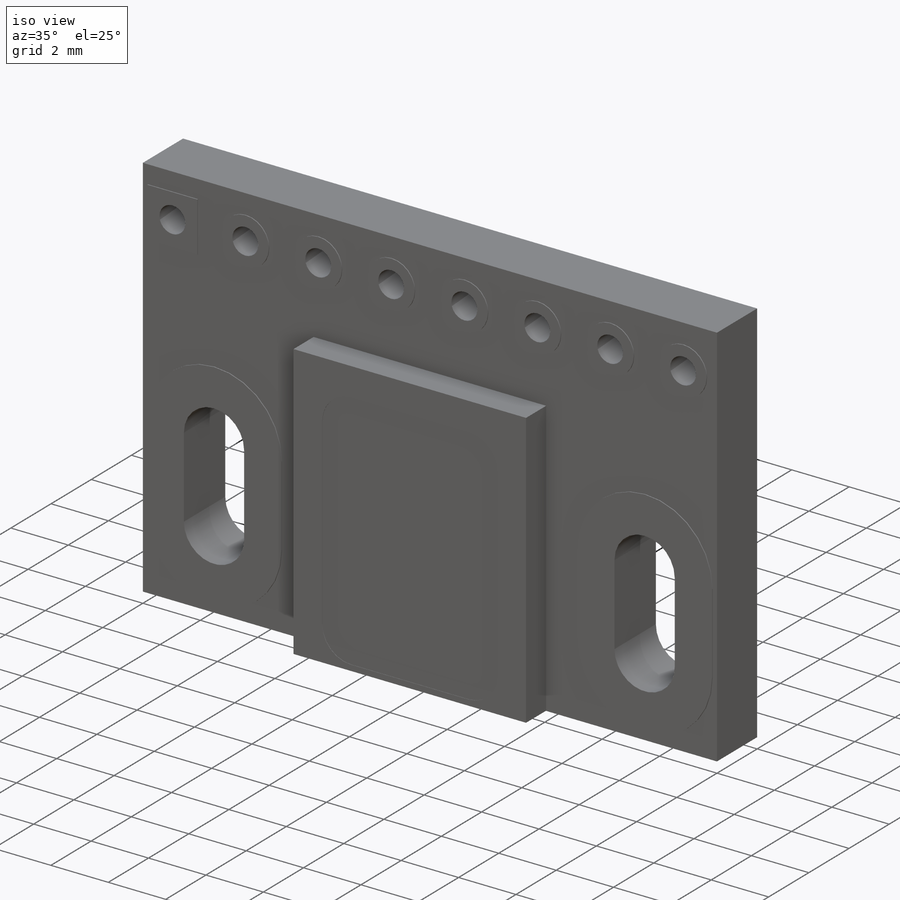
[diagram: iso view]
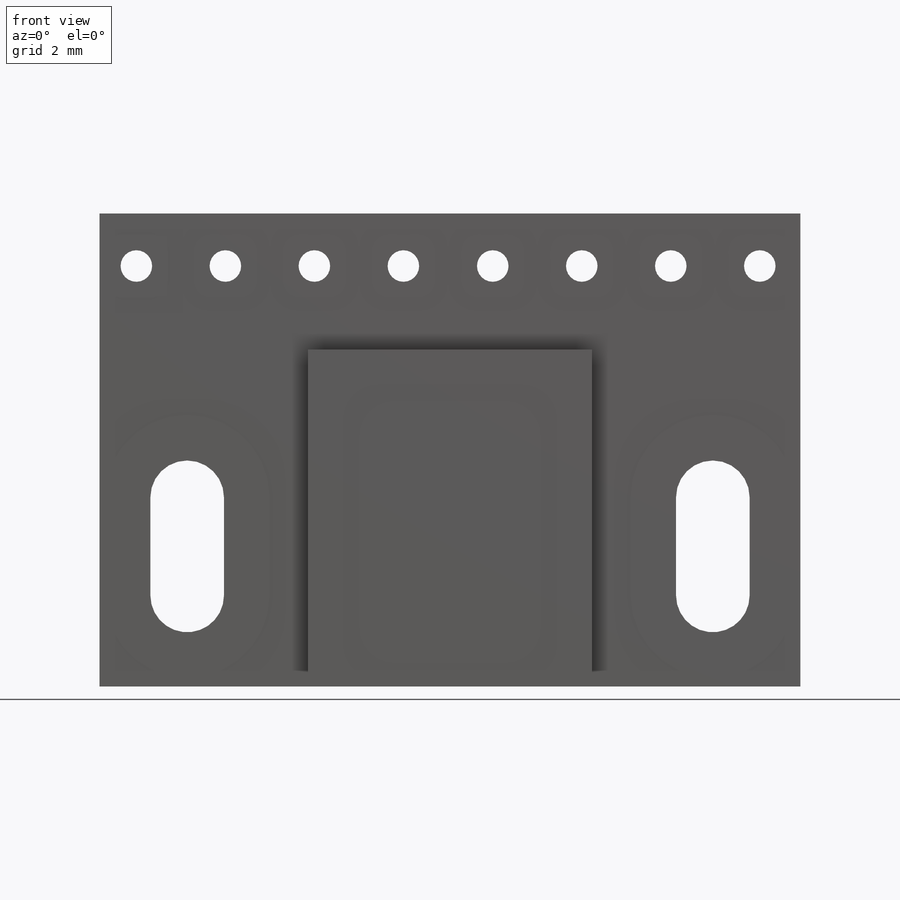
[diagram: front view]
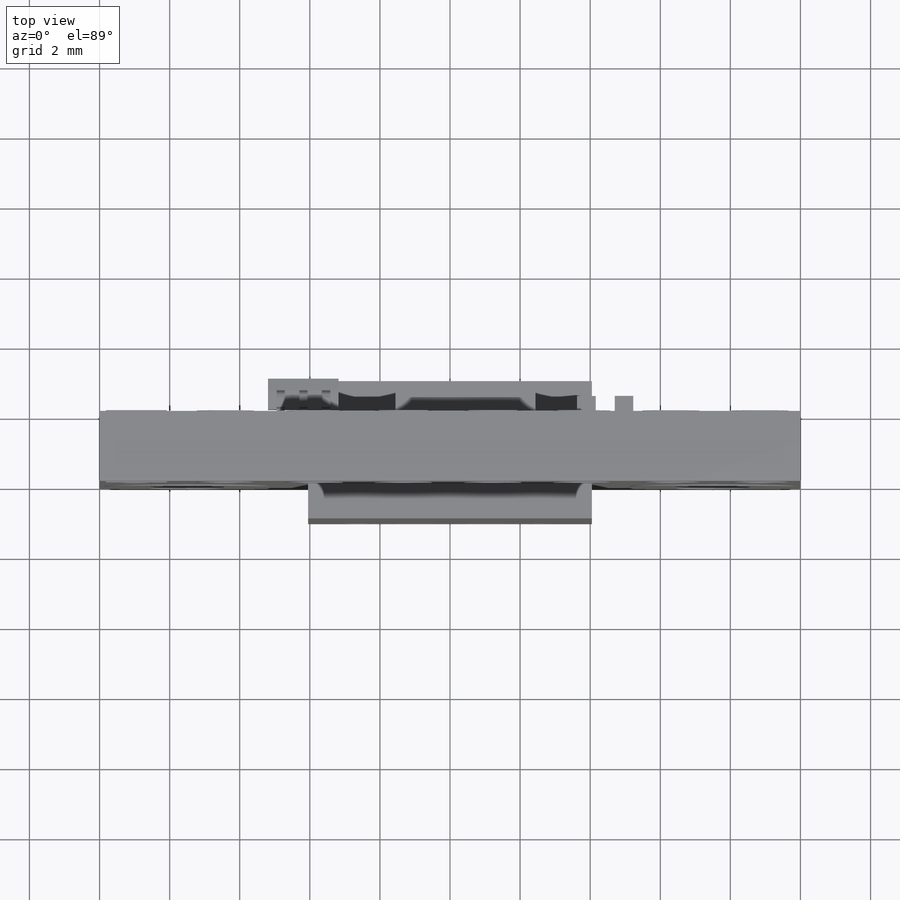
[diagram: top view]
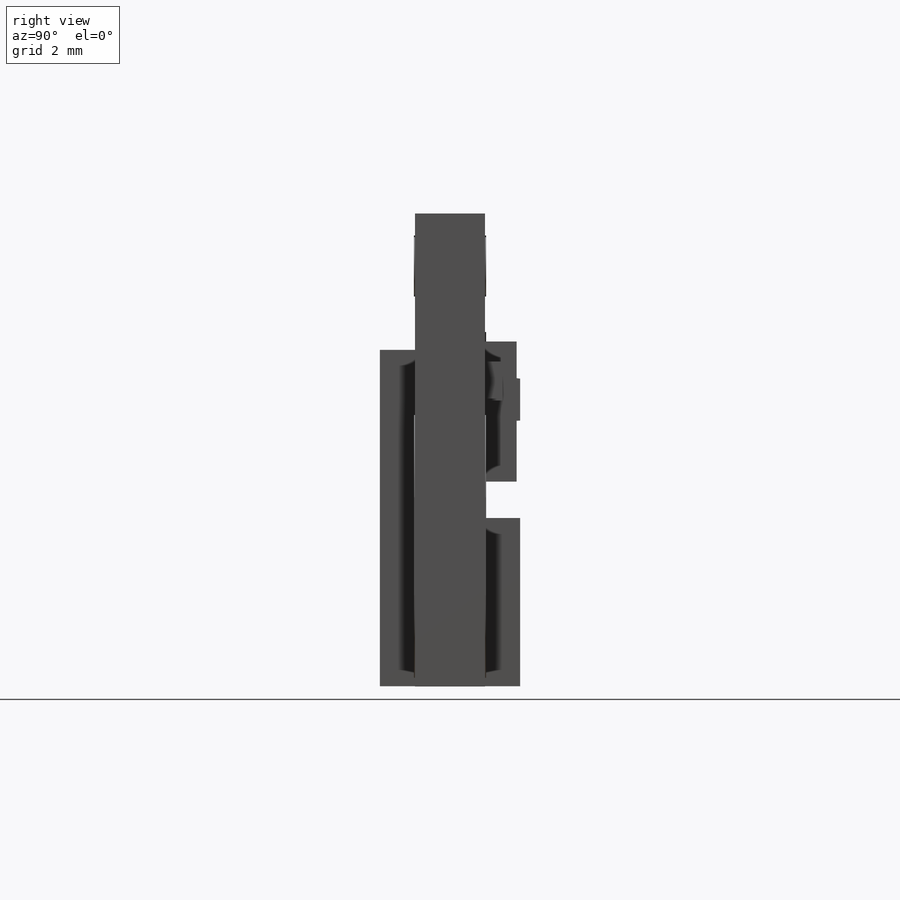
[diagram: right view]
SOLIDWORKS PART (.sldprt)
format: sldprt  version: not decoded by parser v0  size: 701,952 bytes
history: native  units: mm
features: sketch x12, extrude x8, cut_extrude x4, material x1 (+12 scaffold rows collapsed)
feature tree (37):
  scaffold x12  (default folders/planes/origin — collapsed)
  material  "Material <not specified>"
  sketch  "Sketch1"  dims[c1.D1=~13.500001mm c1.D2=20.0mm c2.D1=2.1mm c2.D2=2.1mm]
  extrude  "Boss-Extrude1"  Depth=2mm
  sketch  "Sketch2"  dims[D1=0.0mm D2=0.0mm D3=1.3mm]
  extrude  "Boss-Extrude2"  Depth=0.03mm
  sketch  "Sketch3"  dims[c1.D1=9.6mm c1.D2=8.0mm c2.D1=1.1mm c2.D2=1.1mm c2.D3=9.6mm]
  extrude  "Boss-Extrude3"  Depth=1mm
  sketch  "Sketch4"  dims[D1=4.0mm D2=4.0mm]
  extrude  "Boss-Extrude4"  Depth=0.9mm
  sketch  "Sketch5"  dims[D1=4.8mm D2=8.1mm]
  extrude  "Boss-Extrude5"  Depth=1mm
  sketch  "Sketch6"  dims[c1.D5=1.0mm c1.D1=~3.441726mm c1.D2=~6.112916mm c2.D1=1.0mm c2.D2=1.0mm c2.D3=1.0mm c2.D4=0.2mm]
  cut_extrude  "Cut-Extrude1"  Depth=0.01mm
  sketch  "Sketch7"  dims[c1.D5=1.0mm c1.D1=~8.621061mm c1.D2=~5.960556mm c2.D1=1.0mm c2.D2=1.0mm c2.D3=1.0mm c2.D4=0.2mm]
  cut_extrude  "Cut-Extrude2"  Depth=0.01mm
  sketch  "Sketch8"  dims[c1.D1=~0.989635mm c1.D2=~0.999632mm c2.D1=~0.989635mm c2.D2=~1.049613mm]
  extrude  "Boss-Extrude6"  [1 undecoded]
  sketch  "Sketch9"  dims[c1.D1=~1.251478mm c1.D2=~2.013695mm c2.D1=~0.56352mm c2.D2=~0.232887mm c3.D1=~0.56352mm c3.D2=~0.240208mm c4.D1=~0.522431mm c4.D2=~0.232887mm c5.D1=~0.522431mm c5.D2=~0.236905mm c6.D1=~0.522431mm c6.D2=~0.240208mm]
  extrude  "Boss-Extrude7"  Depth=1mm
  sketch  "Sketch10"  dims[D1=~1.915698mm]
  cut_extrude  "Cut-Extrude3"  Depth=2.6mm
  sketch  "Sketch11"  dims[c1.D1=~1.043933mm c1.D2=~0.533099mm c2.D1=~1.054343mm c2.D2=~0.526574mm]
  extrude  "Boss-Extrude8"  Depth=0.5mm
  sketch  "Sketch12"  dims[c1.D1=~0.528354mm c1.D2=~0.790234mm c2.D1=~0.588081mm c2.D2=~0.781045mm]
  cut_extrude  "Cut-Extrude4"  Depth=0.01mm
decode coverage: 23 of 24 modeling features carry decoded parameters
note: ~ marks probable driven/reference dimensions
note: 1 parameter value undecoded
note: suppression state not decoded; provenance and decode notes live in map.json
